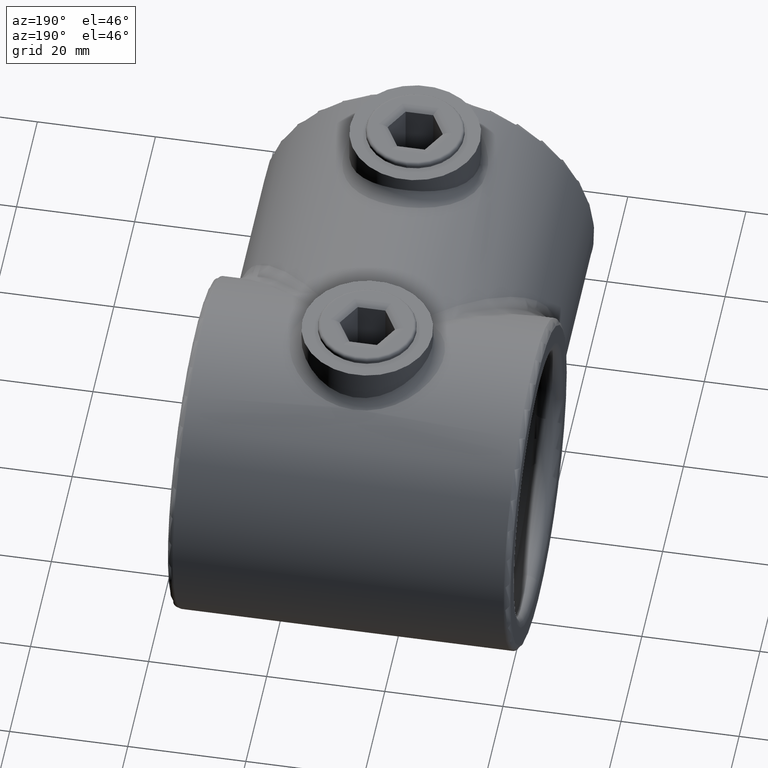
[diagram: clean part render]
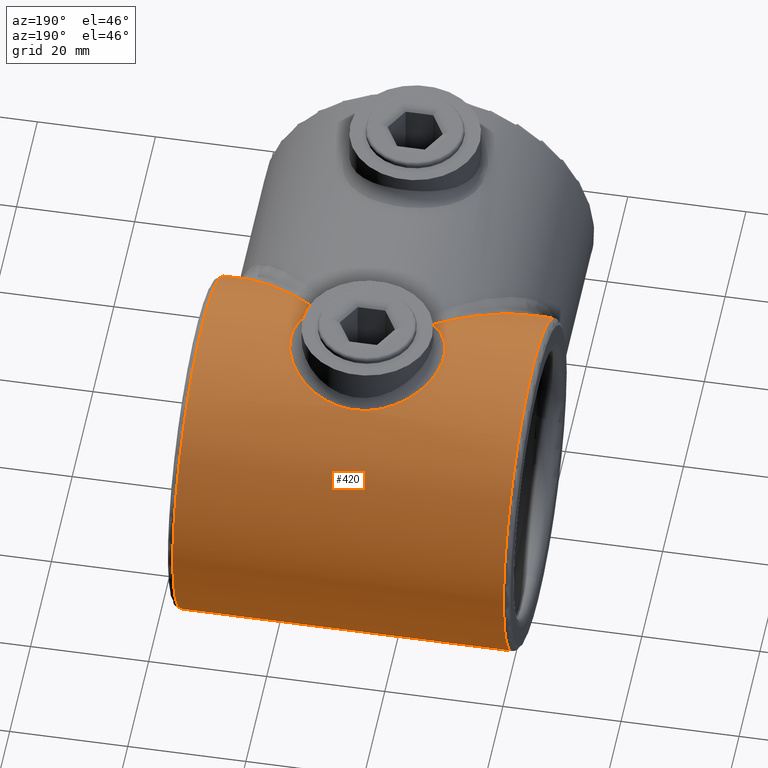
[diagram: same view with one face highlighted and labeled with its STEP entity id]
A machine part, auxiliary view. The second image highlights one B-rep face of the part: STEP entity #420.
In plain terms, the highlighted cylindrical surface (partial cylindrical patch) has radius 28 mm, axis along (-1, -0, -0).
Its self-contained STEP definition (entity closure, byte-faithful):
#20 = CARTESIAN_POINT ( 'NONE',  ( -10.41528277699508109, 52.71575505961534702, 27.04046532518206902 ) ) ;
#31 = CARTESIAN_POINT ( 'NONE',  ( -12.50011360306768715, 56.65447802046448089, 27.80088631221952511 ) ) ;
#44 = CARTESIAN_POINT ( 'NONE',  ( -28.00000000000000000, 36.24242424242425642, -14.81815083345585826 ) ) ;
#54 = CYLINDRICAL_SURFACE ( 'NONE', #3379, 27.99999999999998224 ) ;
#59 = CARTESIAN_POINT ( 'NONE',  ( 28.00000000000000000, 36.24242424242425642, 14.81815083345586892 ) ) ;
#68 = CARTESIAN_POINT ( 'NONE',  ( 10.09466926078352955, 67.66675038866480918, 26.93363139519001237 ) ) ;
#81 = CARTESIAN_POINT ( 'NONE',  ( -0.6195611947551475929, 72.12287711860456341, 25.23957906256835315 ) ) ;
#96 = CARTESIAN_POINT ( 'NONE',  ( 4.731055672528941436, 71.31541774643626752, 25.61296145495811416 ) ) ;
#99 = CARTESIAN_POINT ( 'NONE',  ( 28.00000000000000000, 36.24242424242425642, -14.81815083345585826 ) ) ;
#110 = CARTESIAN_POINT ( 'NONE',  ( 10.47990722723644019, 67.20303007085126978, 27.06225273911070417 ) ) ;
#121 = CARTESIAN_POINT ( 'NONE',  ( -11.16680382796550219, 66.21921859478835870, 27.30182910986175671 ) ) ;
#319 = CARTESIAN_POINT ( 'NONE',  ( -10.03308011563880875, 52.26313217197606775, 26.91353147367563992 ) ) ;
#346 = CARTESIAN_POINT ( 'NONE',  ( -12.73174571528282151, 57.52943040274331565, 27.89234952706861748 ) ) ;
#348 = EDGE_CURVE ( 'NONE', #2701, #3863, #3924, .T. ) ;
#377 = CARTESIAN_POINT ( 'NONE',  ( 12.74920254332087488, 57.55286906312650785, 27.89924034975572198 ) ) ;
#393 = CARTESIAN_POINT ( 'NONE',  ( -12.62872192507288638, 62.94019670357661767, 27.85114822397828149 ) ) ;
#407 = CARTESIAN_POINT ( 'NONE',  ( -8.837035100977949753, 68.90350431255461672, 26.54754077569247173 ) ) ;
#418 = CARTESIAN_POINT ( 'NONE',  ( 4.163419990014734395, 71.50818096242464605, 25.52628397595589504 ) ) ;
#420 = ADVANCED_FACE ( 'NONE', ( #2387 ), #54, .T. ) ;
#431 = CARTESIAN_POINT ( 'NONE',  ( -6.393277734868358486, 70.56846928914842465, 25.92929617682866095 ) ) ;
#487 = EDGE_CURVE ( 'NONE', #2130, #3219, #510, .T. ) ;
#504 = CARTESIAN_POINT ( 'NONE',  ( 10.03567937311883540, 52.26580074299072010, 26.91434465317747282 ) ) ;
#510 = CIRCLE ( 'NONE', #3945, 27.99999999999998224 ) ;
#536 = AXIS2_PLACEMENT_3D ( 'NONE', #3097, #939, #2138 ) ;
#543 = DIRECTION ( 'NONE',  ( 0.000000000000000000, 0.000000000000000000, -1.000000000000000000 ) ) ;
#584 =( BOUNDED_CURVE ( )  B_SPLINE_CURVE ( 3, ( #3799, #1915, #2212, #3171 ),
 .UNSPECIFIED., .F., .F. ) 
 B_SPLINE_CURVE_WITH_KNOTS ( ( 4, 4 ),
 ( 0.5576806297393983591, 1.275010601375037966 ),
 .UNSPECIFIED. ) 
 CURVE ( )  GEOMETRIC_REPRESENTATION_ITEM ( )  RATIONAL_B_SPLINE_CURVE ( ( 1.000000000000000000, 0.9575775204191483425, 0.9575775204191483425, 1.000000000000000000 ) ) 
 REPRESENTATION_ITEM ( '' )  );
#705 = CARTESIAN_POINT ( 'NONE',  ( -12.03033797720831011, 64.63643784428464301, 27.61889155082076641 ) ) ;
#716 = CARTESIAN_POINT ( 'NONE',  ( 11.43509261825584211, 54.19849594350951349, 27.39771325668697699 ) ) ;
#730 = CARTESIAN_POINT ( 'NONE',  ( 2.395645821855536539, 71.93896211399555796, 25.32723182652465255 ) ) ;
#743 = CARTESIAN_POINT ( 'NONE',  ( 12.76648700557896454, 62.36684603558239104, 27.90613574273221786 ) ) ;
#754 = CARTESIAN_POINT ( 'NONE',  ( 11.17039985843127958, 66.23386504121850749, 27.30179650068775032 ) ) ;
#795 = CARTESIAN_POINT ( 'NONE',  ( 9.619220954165701443, 51.83823676619700649, 26.78405534857148496 ) ) ;
#806 = CIRCLE ( 'NONE', #536, 27.99999999999998224 ) ;
#820 = ORIENTED_EDGE ( 'NONE', *, *, #3311, .T. ) ;
#824 = VERTEX_POINT ( 'NONE', #3158 ) ;
#831 = VERTEX_POINT ( 'NONE', #44 ) ;
#939 = DIRECTION ( 'NONE',  ( 1.000000000000000000, 0.000000000000000000, 0.000000000000000000 ) ) ;
#1023 = CARTESIAN_POINT ( 'NONE',  ( -7.423887680404516409, 69.97627270625430640, 26.16444356035503205 ) ) ;
#1037 = CARTESIAN_POINT ( 'NONE',  ( -12.25883571806701156, 64.08213498061807911, 27.70681122124568674 ) ) ;
#1048 = CARTESIAN_POINT ( 'NONE',  ( -5.856803694626726120, 70.83592890626556482, 25.81866743423704946 ) ) ;
#1063 = CARTESIAN_POINT ( 'NONE',  ( 12.93453755851290943, 58.74641905002017239, 27.97357002246871716 ) ) ;
#1066 = CARTESIAN_POINT ( 'NONE',  ( 0.000000000000000000, 60.00000000000000000, -27.99999999999997158 ) ) ;
#1077 = CARTESIAN_POINT ( 'NONE',  ( -11.00336347381615987, 66.46784840734089528, 27.24387910481529218 ) ) ;
#1079 = ORIENTED_EDGE ( 'NONE', *, *, #487, .T. ) ;
#1226 = ORIENTED_EDGE ( 'NONE', *, *, #1427, .T. ) ;
#1314 = CARTESIAN_POINT ( 'NONE',  ( 0.000000000000000000, 60.00000000000000000, -27.99999999999997158 ) ) ;
#1334 = CARTESIAN_POINT ( 'NONE',  ( -4.184128606700522113, 71.50143237568548216, 25.52932488686332491 ) ) ;
#1349 = CARTESIAN_POINT ( 'NONE',  ( -7.912537014569167582, 69.64372613418316860, 26.28971204058302291 ) ) ;
#1365 = CARTESIAN_POINT ( 'NONE',  ( 1.194231197991034277, 72.09528247941240409, 25.25295289856543590 ) ) ;
#1376 = ORIENTED_EDGE ( 'NONE', *, *, #348, .T. ) ;
#1378 = CARTESIAN_POINT ( 'NONE',  ( 12.99903327828391042, 59.66076357266459951, 27.99960901598456431 ) ) ;
#1390 = CARTESIAN_POINT ( 'NONE',  ( 11.47812314474594686, 65.72678498428746252, 27.41341951091473916 ) ) ;
#1404 = CARTESIAN_POINT ( 'NONE',  ( 9.619220954165701443, 51.83823676619700649, 26.78405534857148496 ) ) ;
#1427 = EDGE_CURVE ( 'NONE', #831, #824, #806, .T. ) ;
#1601 = CARTESIAN_POINT ( 'NONE',  ( -11.98150226354639436, 55.25544433308900238, 27.60037376682786459 ) ) ;
#1616 = CARTESIAN_POINT ( 'NONE',  ( -9.619220954147317926, 51.83823676617812737, 26.78405534856573311 ) ) ;
#1644 = CARTESIAN_POINT ( 'NONE',  ( -13.04561216457846307, 59.33227145510674916, 28.01796173939480283 ) ) ;
#1656 = CARTESIAN_POINT ( 'NONE',  ( -11.62263097072734475, 65.44350209793580575, 27.46712974638497329 ) ) ;
#1663 = CARTESIAN_POINT ( 'NONE',  ( 17.33366175775847040, 45.29265062978068102, 24.78945357610783873 ) ) ;
#1671 = CARTESIAN_POINT ( 'NONE',  ( 12.01701163209221512, 64.66548004448785036, 27.61385397752633253 ) ) ;
#1681 = CARTESIAN_POINT ( 'NONE',  ( 12.60412855751244088, 56.96840246990205259, 27.84141049163472204 ) ) ;
#1694 = CARTESIAN_POINT ( 'NONE',  ( 7.906810747384697358, 69.64776591772937309, 26.28821728317996786 ) ) ;
#1780 = EDGE_CURVE ( 'NONE', #824, #2701, #584, .T. ) ;
#1829 =( BOUNDED_CURVE ( )  B_SPLINE_CURVE ( 3, ( #1066, #1966, #3877, #3573 ),
 .UNSPECIFIED., .F., .F. ) 
 B_SPLINE_CURVE_WITH_KNOTS ( ( 4, 4 ),
 ( 4.712388980384689674, 5.725504677440187429 ),
 .UNSPECIFIED. ) 
 CURVE ( )  GEOMETRIC_REPRESENTATION_ITEM ( )  RATIONAL_B_SPLINE_CURVE ( ( 1.000000000000000000, 0.9162798093637800623, 0.9162798093637800623, 1.000000000000000000 ) ) 
 REPRESENTATION_ITEM ( '' )  );
#1868 = VERTEX_POINT ( 'NONE', #1927 ) ;
#1889 =( BOUNDED_CURVE ( )  B_SPLINE_CURVE ( 3, ( #2843, #3173, #2804, #1314 ),
 .UNSPECIFIED., .F., .F. ) 
 B_SPLINE_CURVE_WITH_KNOTS ( ( 4, 4 ),
 ( 3.699273283329192363, 4.712388980384689674 ),
 .UNSPECIFIED. ) 
 CURVE ( )  GEOMETRIC_REPRESENTATION_ITEM ( )  RATIONAL_B_SPLINE_CURVE ( ( 1.000000000000000000, 0.9162798093637800623, 0.9162798093637800623, 1.000000000000000000 ) ) 
 REPRESENTATION_ITEM ( '' )  );
#1915 = CARTESIAN_POINT ( 'NONE',  ( -23.73202243140509893, 39.86373854305021780, 20.62411473583902932 ) ) ;
#1927 = CARTESIAN_POINT ( 'NONE',  ( 0.000000000000000000, 60.00000000000000000, -27.99999999999997158 ) ) ;
#1937 = CARTESIAN_POINT ( 'NONE',  ( -6.655389253707691744, 70.42651861989612883, 25.98679934990259355 ) ) ;
#1952 = CARTESIAN_POINT ( 'NONE',  ( -2.437052235777084963, 71.93177915773586051, 25.33062437919022969 ) ) ;
#1964 = CARTESIAN_POINT ( 'NONE',  ( -13.05301519525590237, 60.53788589815741972, 28.02102708121202923 ) ) ;
#1966 = CARTESIAN_POINT ( 'NONE',  ( -11.64900199060297226, 50.11599831100353697, -27.99999999999998224 ) ) ;
#1973 = CARTESIAN_POINT ( 'NONE',  ( 2.997484223723404728, 71.81995220715475625, 25.38342239544608248 ) ) ;
#1987 = CARTESIAN_POINT ( 'NONE',  ( 8.836273759462008215, 68.91757188684393043, 26.54480489236928520 ) ) ;
#1995 = CARTESIAN_POINT ( 'NONE',  ( 29.00000000000000000, 60.00000000000000000, 0.000000000000000000 ) ) ;
#2130 = VERTEX_POINT ( 'NONE', #2535 ) ;
#2138 = DIRECTION ( 'NONE',  ( 0.000000000000000000, 0.000000000000000000, -1.000000000000000000 ) ) ;
#2208 = CARTESIAN_POINT ( 'NONE',  ( -12.58470864872239936, 56.94281372014703635, 27.83416045662833582 ) ) ;
#2212 = CARTESIAN_POINT ( 'NONE',  ( -17.33366175775883278, 45.29265062978037548, 24.78945357610760780 ) ) ;
#2214 = CARTESIAN_POINT ( 'NONE',  ( -9.619220954147317926, 51.83823676617812737, 26.78405534856573311 ) ) ;
#2249 = CARTESIAN_POINT ( 'NONE',  ( 11.97412242889201650, 55.26633502704262213, 27.59840119121582447 ) ) ;
#2263 = CARTESIAN_POINT ( 'NONE',  ( -10.48759537015106247, 67.19314676342423809, 27.06486073181194385 ) ) ;
#2275 = CARTESIAN_POINT ( 'NONE',  ( 12.24895385692117777, 64.10901883676935142, 27.70298704710690529 ) ) ;
#2286 = CARTESIAN_POINT ( 'NONE',  ( 12.98559445809655699, 59.35297961433056457, 27.99416813589289177 ) ) ;
#2303 = DIRECTION ( 'NONE',  ( -1.000000000000000000, -0.000000000000000000, -0.000000000000000000 ) ) ;
#2322 = CARTESIAN_POINT ( 'NONE',  ( 10.42370280106976566, 52.72620197163599443, 27.04329369935394922 ) ) ;
#2355 =( BOUNDED_CURVE ( )  B_SPLINE_CURVE ( 3, ( #3800, #1663, #2906, #59 ),
 .UNSPECIFIED., .F., .T. ) 
 B_SPLINE_CURVE_WITH_KNOTS ( ( 4, 4 ),
 ( 1.866582052214735832, 2.583912023850393869 ),
 .UNSPECIFIED. ) 
 CURVE ( )  GEOMETRIC_REPRESENTATION_ITEM ( )  RATIONAL_B_SPLINE_CURVE ( ( 1.000000000000000000, 0.9575775204191462331, 0.9575775204191462331, 1.000000000000000000 ) ) 
 REPRESENTATION_ITEM ( '' )  );
#2387 = FACE_OUTER_BOUND ( 'NONE', #3456, .T. ) ;
#2391 = ORIENTED_EDGE ( 'NONE', *, *, #1780, .T. ) ;
#2535 = CARTESIAN_POINT ( 'NONE',  ( 28.00000000000000000, 36.24242424242425642, 14.81815083345586892 ) ) ;
#2546 = CARTESIAN_POINT ( 'NONE',  ( 12.20937201097224545, 55.82247726094727369, 27.68804139248935670 ) ) ;
#2557 = CARTESIAN_POINT ( 'NONE',  ( 11.84653713413166187, 54.99475355494801931, 27.55032746225665718 ) ) ;
#2573 = CARTESIAN_POINT ( 'NONE',  ( -1.532378302421947280, 72.05209833131434038, 25.27348209367865906 ) ) ;
#2584 = CARTESIAN_POINT ( 'NONE',  ( 12.62572751375697067, 62.95294325590039364, 27.84994889152457276 ) ) ;
#2597 = CARTESIAN_POINT ( 'NONE',  ( 0.5913010023714417862, 72.13392825135075270, 25.23425817488936218 ) ) ;
#2641 = CARTESIAN_POINT ( 'NONE',  ( 11.12271060115164723, 53.69220826343878628, 27.28478761645615336 ) ) ;
#2701 = VERTEX_POINT ( 'NONE', #2214 ) ;
#2804 = CARTESIAN_POINT ( 'NONE',  ( 11.64900199060297936, 50.11599831100352986, -27.99999999999997513 ) ) ;
#2810 = EDGE_CURVE ( 'NONE', #3219, #1868, #1889, .T. ) ;
#2826 = CARTESIAN_POINT ( 'NONE',  ( -11.11467323102789884, 53.67993926879694300, 27.28193214762837471 ) ) ;
#2843 = CARTESIAN_POINT ( 'NONE',  ( 28.00000000000000000, 36.24242424242425642, -14.81815083345585826 ) ) ;
#2853 = EDGE_CURVE ( 'NONE', #3863, #2130, #2355, .T. ) ;
#2868 = CARTESIAN_POINT ( 'NONE',  ( -10.10996907272672196, 67.64933593691330316, 26.93862109400879135 ) ) ;
#2885 = CARTESIAN_POINT ( 'NONE',  ( -9.493245122814299108, 68.29426243935837704, 26.74426335249544451 ) ) ;
#2901 = CARTESIAN_POINT ( 'NONE',  ( -8.610326870843680425, 69.09484366308169001, 26.48247386435183159 ) ) ;
#2906 = CARTESIAN_POINT ( 'NONE',  ( 23.73202243140495682, 39.86373854305033149, 20.62411473583919630 ) ) ;
#2914 = CARTESIAN_POINT ( 'NONE',  ( 12.95450677716269894, 61.17865117156180332, 27.98151449910680455 ) ) ;
#2929 = CARTESIAN_POINT ( 'NONE',  ( 12.31718013513257581, 56.10779952879385490, 27.72966743271532053 ) ) ;
#2948 = ORIENTED_EDGE ( 'NONE', *, *, #2853, .T. ) ;
#3038 = DIRECTION ( 'NONE',  ( -1.000000000000000000, -0.000000000000000000, -0.000000000000000000 ) ) ;
#3097 = CARTESIAN_POINT ( 'NONE',  ( -28.00000000000000000, 60.00000000000000000, 0.000000000000000000 ) ) ;
#3158 = CARTESIAN_POINT ( 'NONE',  ( -28.00000000000000000, 36.24242424242424221, 14.81815083345582451 ) ) ;
#3171 = CARTESIAN_POINT ( 'NONE',  ( -9.619220954147317926, 51.83823676617812737, 26.78405534856573311 ) ) ;
#3173 = CARTESIAN_POINT ( 'NONE',  ( 21.83511898014346997, 41.47323238048433325, -23.20457650896799606 ) ) ;
#3193 = CARTESIAN_POINT ( 'NONE',  ( -12.77034158967755140, 62.35131644665358408, 27.90767154294781704 ) ) ;
#3209 = CARTESIAN_POINT ( 'NONE',  ( -9.278417857747967901, 68.50335913119936038, 26.67840313374439631 ) ) ;
#3219 = VERTEX_POINT ( 'NONE', #99 ) ;
#3221 = CARTESIAN_POINT ( 'NONE',  ( -1.226961371982742133, 72.08251341642234422, 25.25892654944780702 ) ) ;
#3236 = CARTESIAN_POINT ( 'NONE',  ( 12.89697040596275990, 58.44597345411985145, 27.95843373605913129 ) ) ;
#3248 = CARTESIAN_POINT ( 'NONE',  ( 7.413664310046121919, 69.98324703371781652, 26.16181832994761436 ) ) ;
#3311 = EDGE_CURVE ( 'NONE', #1868, #831, #1829, .T. ) ;
#3379 = AXIS2_PLACEMENT_3D ( 'NONE', #1995, #2303, #3987 ) ;
#3456 = EDGE_LOOP ( 'NONE', ( #3494, #820, #1226, #2391, #1376, #2948, #1079 ) ) ;
#3467 = CARTESIAN_POINT ( 'NONE',  ( -11.43306073202344741, 54.19507121686592654, 27.39697505871329852 ) ) ;
#3494 = ORIENTED_EDGE ( 'NONE', *, *, #2810, .T. ) ;
#3510 = CARTESIAN_POINT ( 'NONE',  ( -0.3164277896269666601, 72.13302554314215342, 25.23469221688533537 ) ) ;
#3526 = CARTESIAN_POINT ( 'NONE',  ( -3.027446230117200709, 71.81309956577433695, 25.38661171800182714 ) ) ;
#3541 = CARTESIAN_POINT ( 'NONE',  ( 5.836660029161580887, 70.85637448606348698, 25.81088154805810220 ) ) ;
#3553 = CARTESIAN_POINT ( 'NONE',  ( 9.274017334107076849, 68.52204958050802475, 26.67534878125156084 ) ) ;
#3568 = CARTESIAN_POINT ( 'NONE',  ( 13.00178057356777117, 60.57655633313393650, 28.00072014076186733 ) ) ;
#3573 = CARTESIAN_POINT ( 'NONE',  ( -28.00000000000000000, 36.24242424242425642, -14.81815083345585826 ) ) ;
#3794 = CARTESIAN_POINT ( 'NONE',  ( -12.21439028237794489, 55.80370981827690713, 27.68967924972801953 ) ) ;
#3799 = CARTESIAN_POINT ( 'NONE',  ( -28.00000000000000000, 36.24242424242424221, 14.81815083345582451 ) ) ;
#3800 = CARTESIAN_POINT ( 'NONE',  ( 9.619220954165701443, 51.83823676619700649, 26.78405534857148496 ) ) ;
#3837 = CARTESIAN_POINT ( 'NONE',  ( 6.376741209009197497, 70.58875597593063844, 25.92265816901521447 ) ) ;
#3848 = CARTESIAN_POINT ( 'NONE',  ( -5.581791968614727040, 70.96163101896468106, 25.76545147518271150 ) ) ;
#3861 = CARTESIAN_POINT ( 'NONE',  ( -12.79443258459723864, 57.82937605024601879, 27.91736277406490174 ) ) ;
#3863 = VERTEX_POINT ( 'NONE', #795 ) ;
#3874 = CARTESIAN_POINT ( 'NONE',  ( -4.750416349995708387, 71.30844575195152402, 25.61605808743542667 ) ) ;
#3877 = CARTESIAN_POINT ( 'NONE',  ( -21.83511898014346997, 41.47323238048433325, -23.20457650896799606 ) ) ;
#3887 = CARTESIAN_POINT ( 'NONE',  ( -11.47617431205932625, 65.70758148388972586, 27.41335561872378790 ) ) ;
#3924 = B_SPLINE_CURVE_WITH_KNOTS ( 'NONE', 3,
 ( #1616, #319, #20, #2826, #3467, #1601, #3794, #31, #2208, #346, #3861, #1644, #1964, #3193, #393, #1037, #705, #1656, #3887, #121, #1077, #2263, #2868, #2885, #3209, #407, #2901, #1349, #1023, #1937, #431, #1048, #3848, #3874, #1334, #3526, #1952, #2573, #3221, #81, #3510, #2597, #1365, #730, #1973, #418, #96, #3541, #3837, #3248, #1694, #1987, #3553, #68, #110, #754, #1390, #1671, #2275, #2584, #743, #2914, #3568, #1378, #2286, #1063, #3236, #377, #1681, #2929, #2546, #2249, #2557, #716, #2641, #2322, #504, #1404 ),
 .UNSPECIFIED., .F., .F.,
 ( 4, 2, 2, 2, 2, 2, 2, 2, 2, 2, 2, 2, 2, 2, 2, 2, 2, 2, 2, 2, 2, 2, 2, 2, 2, 2, 2, 2, 2, 2, 2, 2, 2, 2, 2, 2, 2, 2, 4 ),
 ( 0.001049724387393843059, 0.002867252106143456693, 0.004684779824893069676, 0.006502307543642683527, 0.007411071403017489151, 0.008319835262392294775, 0.01195489069989153462, 0.01377241841864113372, 0.01558994613739073283, 0.01649870999676555233, 0.01740747385614037357, 0.01922500157489004033, 0.02013376543426486504, 0.02104252929363968627, 0.02286005701238935303, 0.02376882087176419162, 0.02467758473113902673, 0.02649511244988870043, 0.02831264016863837760, 0.02922140402801320924, 0.03013016788738804783, 0.03194769560613772152, 0.03376522332488738481, 0.03558275104363706198, 0.03740027876238673221, 0.03921780648113639550, 0.04103533419988605879, 0.04285286191863572902, 0.04467038963738538537, 0.04648791735613505560, 0.04830544507488472583, 0.05012297279363438218, 0.05103173665300921730, 0.05194050051238405241, 0.05375802823113374346, 0.05466679209050858551, 0.05557555594988343450, 0.05739308366863311861, 0.05921061138738280272 ),
 .UNSPECIFIED. ) ;
#3945 = AXIS2_PLACEMENT_3D ( 'NONE', #4013, #3038, #543 ) ;
#3987 = DIRECTION ( 'NONE',  ( 0.000000000000000000, 0.000000000000000000, 1.000000000000000000 ) ) ;
#4013 = CARTESIAN_POINT ( 'NONE',  ( 28.00000000000000000, 60.00000000000000000, 0.000000000000000000 ) ) ;